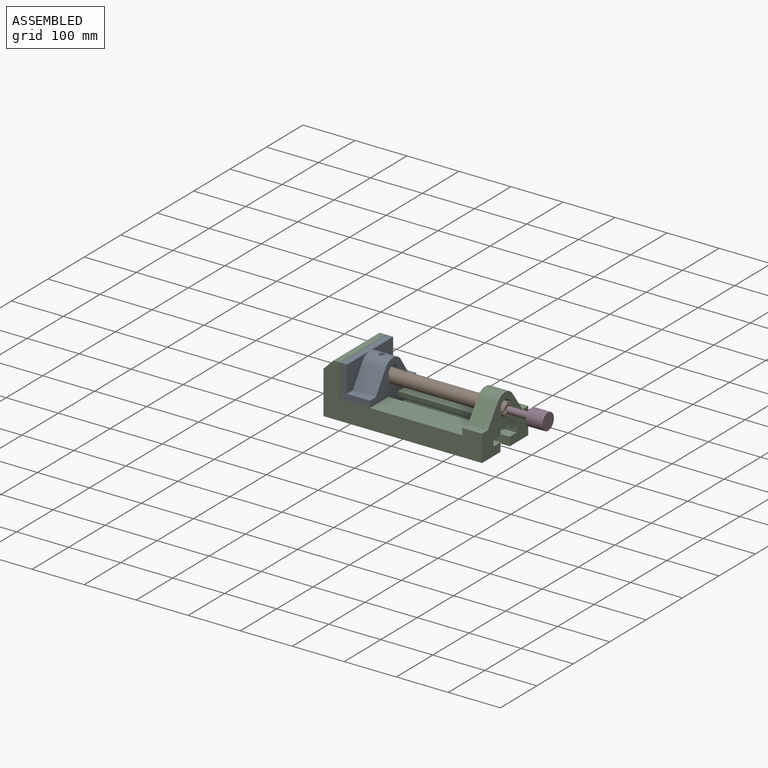
[diagram: assembled view]
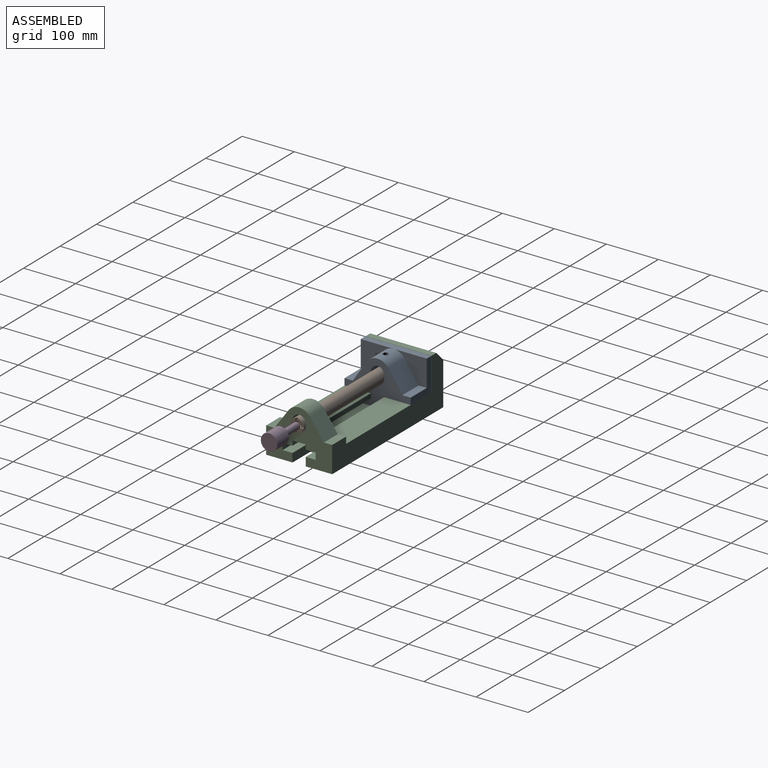
[diagram: assembled view, second angle]
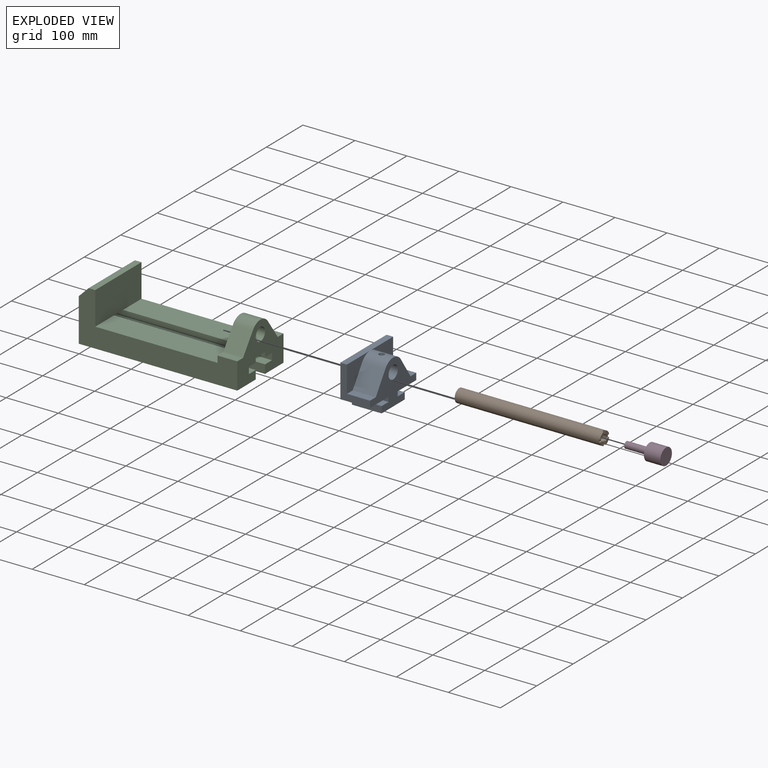
[diagram: exploded view]
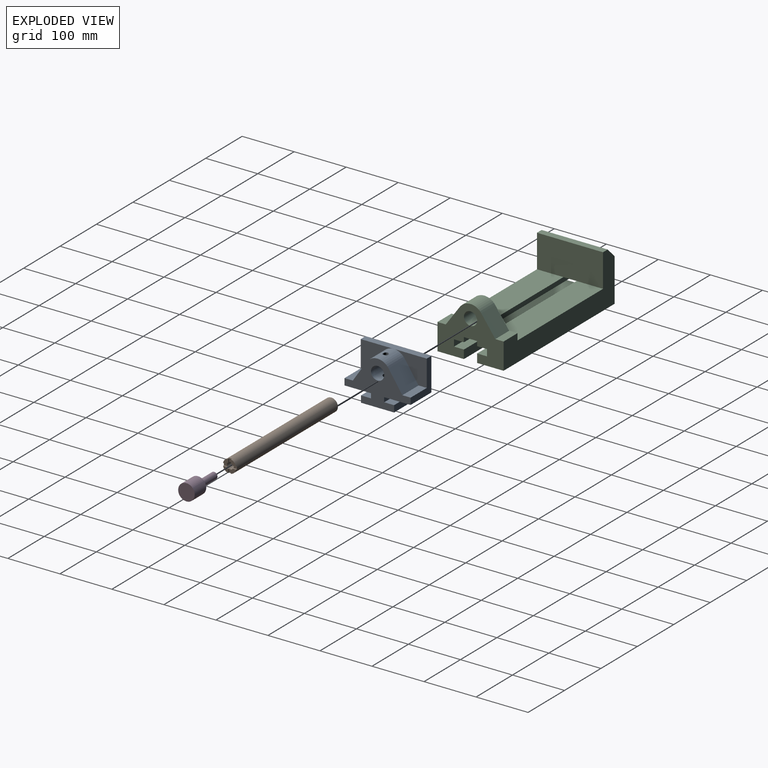
[diagram: exploded view, second angle]
ASSEMBLY  parts=4 mates=3
PART A: 24 faces, bbox 57.2x127x85.1 mm
  f0: plane 127x85.09mm, normal (1,0,0), area 5190mm2, adj f2,f3,f4,f5,f6,f7,f8,f9
  f1: plane 127x12.7mm, normal (0,0,1), area 1612.9mm2, adj f2,f12,f14,f18,f21
  f2: plane 63.5x57.15mm, normal (0,-1,0), area 1371mm2, adj f0,f1,f3,f14,f19,f21
  f3: plane 57.15x50.8mm, normal (0,0,-1), area 2903.2mm2, adj f0,f2,f4,f14
  f4: plane 57.15x8.89mm, normal (0,-1,0), area 508.1mm2, adj f0,f3,f5,f14
  f5: plane 57.15x19.05mm, normal (0,0,1), area 1088.7mm2, adj f0,f4,f6,f14
  f6: plane 57.15x12.7mm, normal (0,-1,0), area 725.8mm2, adj f0,f5,f7,f14
  f7: plane 63.5x57.15mm, normal (0,0,-1), area 3548mm2, adj f0,f6,f8,f14,f23
  f8: plane 57.15x12.7mm, normal (0,1,0), area 725.8mm2, adj f0,f7,f9,f14
  f9: plane 57.15x19.05mm, normal (0,0,1), area 1088.7mm2, adj f0,f8,f10,f14
  f10: plane 57.15x8.89mm, normal (0,1,0), area 508.1mm2, adj f0,f9,f11,f14
  f11: plane 57.15x50.8mm, normal (0,0,-1), area 2903.2mm2, adj f0,f10,f12,f14
  f12: plane 63.5x57.15mm, normal (0,1,0), area 1371mm2, adj f0,f1,f11,f14,f17,f18
  f13: cylinder r=12.7mm len=57.15mm, axis (1,0,0), area 4394.6mm2, adj f0,f14,f22,f23
  f14: plane 127x85.09mm, normal (-1,0,0), area 8590mm2, adj f1,f2,f3,f4,f5,f6,f7,f8
  f15: cylinder r=25.4mm len=44.45mm, axis (1,0,0), area 2131.3mm2, adj f0,f16,f18,f20,f21,f22
  f16: plane 44.45x39.55mm, normal (0,0.83,0.56), area 2116.9mm2, adj f0,f15,f17,f18
  f17: plane 44.45x15.88mm, normal (0,0,1), area 705.6mm2, adj f0,f12,f16,f18
  f18: plane 63.5x50.8mm, normal (1,0,0), area 1700mm2, adj f1,f12,f15,f16,f17
  f19: plane 44.45x15.88mm, normal (0,0,1), area 705.6mm2, adj f0,f2,f20,f21
  f20: plane 44.45x39.55mm, normal (0,-0.83,0.56), area 2116.9mm2, adj f0,f15,f19,f21
  f21: plane 63.5x50.8mm, normal (1,0,0), area 1700mm2, adj f1,f2,f15,f19,f20
  f22: cylinder r=5.08mm len=13.76mm, axis (0,0,1), area 413.9mm2, adj f13,f15
  f23: cylinder r=5.08mm len=48.05mm, axis (0,0,1), area 1516.6mm2, adj f7,f13
PART B: 20 faces, bbox 279.4x25.4x25.4 mm
  f0: cylinder r=12.7mm len=279.4mm, axis (1,0,0), area 22243.2mm2, adj f1,f2,f3,f4,f5,f8,f9,f10
  f1: plane 9.9x9.9mm, normal (1,0,0), area 62.3mm2, adj f0,f6,f14,f17
  f2: plane 9.9x9.9mm, normal (1,0,0), area 62.3mm2, adj f0,f6,f8,f18
  f3: plane 9.9x9.9mm, normal (1,0,0), area 62.3mm2, adj f0,f6,f11,f15
  f4: plane 25.4x25.4mm, normal (-1,0,0), area 506.7mm2, adj f0
  f5: plane 9.9x9.9mm, normal (1,0,0), area 62.3mm2, adj f0,f6,f9,f12
  f6: cylinder r=6.35mm len=19.05mm, axis (1,0,0), area 707mm2, adj f1,f2,f3,f5,f7,f8,f9,f10
  f7: plane 12.7x12.7mm, normal (1,0,0), area 126.7mm2, adj f6
  f8: plane 6.62x2.54mm, normal (0,1,0), area 16.8mm2, adj f0,f2,f6,f10
  f9: plane 6.62x2.54mm, normal (0,-1,0), area 16.8mm2, adj f0,f5,f6,f10
  f10: plane 6.88x5.08mm, normal (1,0,0), area 32.7mm2, adj f0,f6,f8,f9
  f11: plane 6.62x2.54mm, normal (0,0,-1), area 16.8mm2, adj f0,f3,f6,f13
  f12: plane 6.62x2.54mm, normal (0,0,1), area 16.8mm2, adj f0,f5,f6,f13
  f13: plane 6.88x5.08mm, normal (1,0,0), area 32.7mm2, adj f0,f6,f11,f12
  f14: plane 6.62x2.54mm, normal (0,1,0), area 16.8mm2, adj f0,f1,f6,f16
  f15: plane 6.62x2.54mm, normal (0,-1,0), area 16.8mm2, adj f0,f3,f6,f16
  f16: plane 6.88x5.08mm, normal (1,0,0), area 32.7mm2, adj f0,f6,f14,f15
  f17: plane 6.62x2.54mm, normal (0,0,-1), area 16.8mm2, adj f0,f1,f6,f19
  f18: plane 6.62x2.54mm, normal (0,0,1), area 16.8mm2, adj f0,f2,f6,f19
  f19: plane 6.88x5.08mm, normal (1,0,0), area 32.7mm2, adj f0,f6,f17,f18
PART C: 30 faces, bbox 304.8x127x101.6 mm
  f0: plane 234.95x50.8mm, normal (0,0,1), area 11935.5mm2, adj f3,f8,f9,f26
  f1: plane 127x82.55mm, normal (-1,0,0), area 9032.2mm2, adj f2,f5,f9,f10,f11,f18,f19,f20
  f2: plane 304.8x50.8mm, normal (0,0,-1), area 15483.8mm2, adj f1,f6,f10,f19
  f3: plane 127x60.98mm, normal (-1,0,0), area 3985mm2, adj f0,f7,f9,f10,f12,f13,f14,f15
  f4: plane 127x12.7mm, normal (0,0,1), area 1612.9mm2, adj f8,f9,f10,f11
  f5: plane 304.8x50.8mm, normal (0,0,-1), area 15483.8mm2, adj f1,f6,f9,f18
  f6: plane 127x99.08mm, normal (1,0,0), area 7372.1mm2, adj f2,f5,f9,f10,f12,f13,f14,f15
  f7: plane 234.95x50.8mm, normal (0,0,1), area 11935.5mm2, adj f3,f8,f10,f23
  f8: plane 127x63.5mm, normal (1,0,0), area 8064.5mm2, adj f0,f4,f7,f9,f10,f24
  f9: plane 304.8x101.6mm, normal (0,-1,0), area 13931.4mm2, adj f0,f1,f3,f4,f5,f6,f8,f11
  f10: plane 304.8x101.6mm, normal (0,1,0), area 13931.4mm2, adj f1,f2,f3,f4,f6,f7,f8,f11
  f11: plane 127x19.05mm, normal (-0.71,0,0.71), area 3421.5mm2, adj f1,f4,f9,f10
  f12: plane 38.1x15.88mm, normal (0,0,1), area 604.8mm2, adj f3,f6,f10,f16
  f13: plane 38.1x15.88mm, normal (0,0,1), area 604.8mm2, adj f3,f6,f9,f14
  f14: plane 38.1x37.67mm, normal (0,-0.81,0.58), area 1765.1mm2, adj f3,f6,f13,f15
  f15: cylinder r=25.4mm len=41.3mm, axis (1,0,0), area 1837.4mm2, adj f3,f6,f14,f16
  f16: plane 38.1x37.67mm, normal (0,0.81,0.58), area 1765.1mm2, adj f3,f6,f12,f15
  f17: cylinder r=12.7mm len=38.1mm, axis (1,0,0), area 3040.2mm2, adj f3,f6
  f18: plane 304.8x16.51mm, normal (0,1,0), area 5032.2mm2, adj f1,f5,f6,f29
  f19: plane 304.8x16.51mm, normal (0,-1,0), area 5032.2mm2, adj f1,f2,f6,f20
  f20: plane 304.8x19.05mm, normal (0,0,1), area 5806.4mm2, adj f1,f6,f19,f21
  f21: plane 304.8x12.7mm, normal (0,-1,0), area 3871mm2, adj f1,f6,f20,f22
  f22: plane 304.8x19.05mm, normal (0,0,-1), area 5806.4mm2, adj f1,f6,f21,f23
  f23: plane 304.8x8.89mm, normal (0,-1,0), area 2709.7mm2, adj f1,f6,f7,f22,f24,f25
  f24: plane 31.75x25.4mm, normal (0,0,-1), area 806.5mm2, adj f1,f8,f23,f26
  f25: plane 38.1x25.4mm, normal (0,0,-1), area 967.7mm2, adj f3,f6,f23,f26
  f26: plane 304.8x8.89mm, normal (0,1,0), area 2709.7mm2, adj f0,f1,f6,f24,f25,f27
  f27: plane 304.8x19.05mm, normal (0,0,-1), area 5806.4mm2, adj f1,f6,f26,f28
  f28: plane 304.8x12.7mm, normal (0,1,0), area 3871mm2, adj f1,f6,f27,f29
  f29: plane 304.8x19.05mm, normal (0,0,1), area 5806.4mm2, adj f1,f6,f18,f28
PART D: 5 faces, bbox 76.2x31.8x31.8 mm
  f0: cylinder r=15.88mm len=31.75mm, axis (1,0,0), area 3166.9mm2, adj f1,f2
  f1: plane 31.75x31.75mm, normal (-1,0,0), area 665.1mm2, adj f0,f3
  f2: plane 31.75x31.75mm, normal (1,0,0), area 791.7mm2, adj f0
  f3: cylinder r=6.35mm len=44.45mm, axis (1,0,0), area 1773.5mm2, adj f1,f4
  f4: plane 12.7x12.7mm, normal (-1,0,0), area 126.7mm2, adj f3
PLACE A rot(axis=(0.71,0,-0.71),0deg) t=(-254.11,19.22,116.48)mm
PLACE B t=(-32.47,55.26,192.29)mm
PLACE C t=(-343.62,146.22,99.97)mm
PLACE D t=(27.85,82.72,169.82)mm
MATE fastened B.f0 <-> D.f0  axis (1,0,0) through (-32.47,82.72,169.82)mm
MATE slider C.f3 <-> A.f14  axis (-1,0,0) through (-76.92,19.22,138.07)mm
MATE cylindrical C.f8 <-> B.f0  axis (1,0,0) through (-311.87,82.72,169.82)mm
